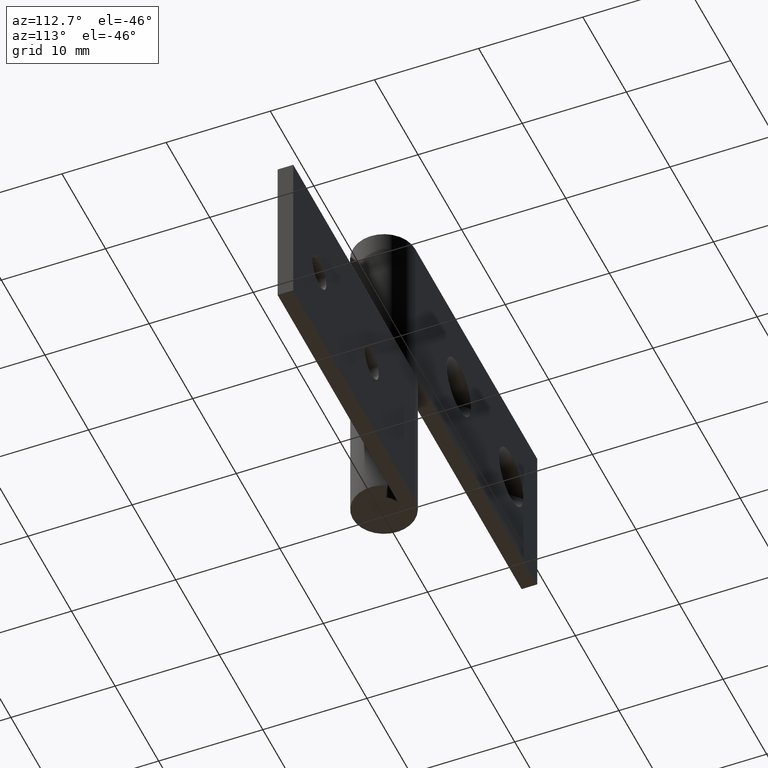
[diagram: clean part render]
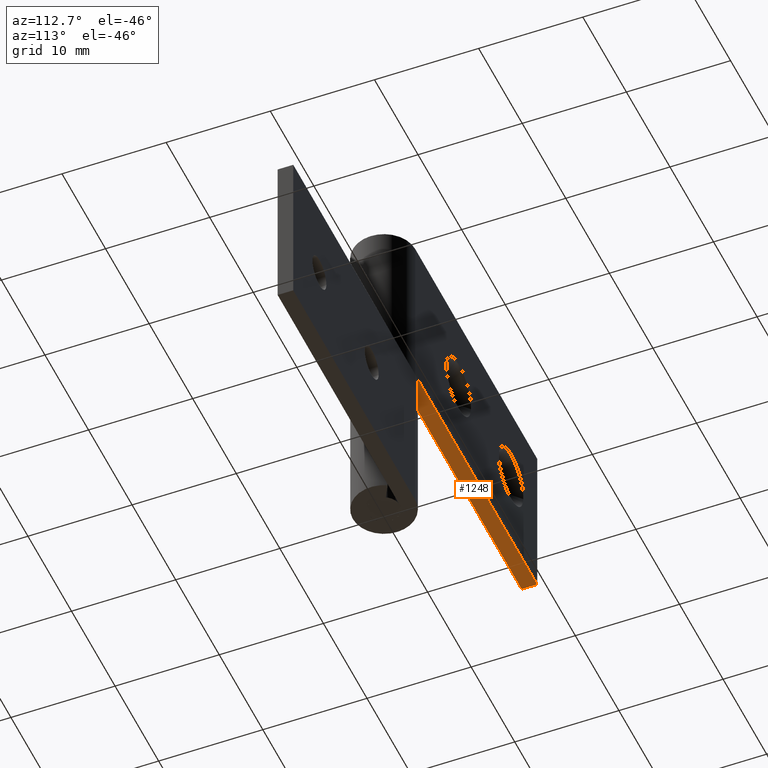
[diagram: same view with one face highlighted and labeled with its STEP entity id]
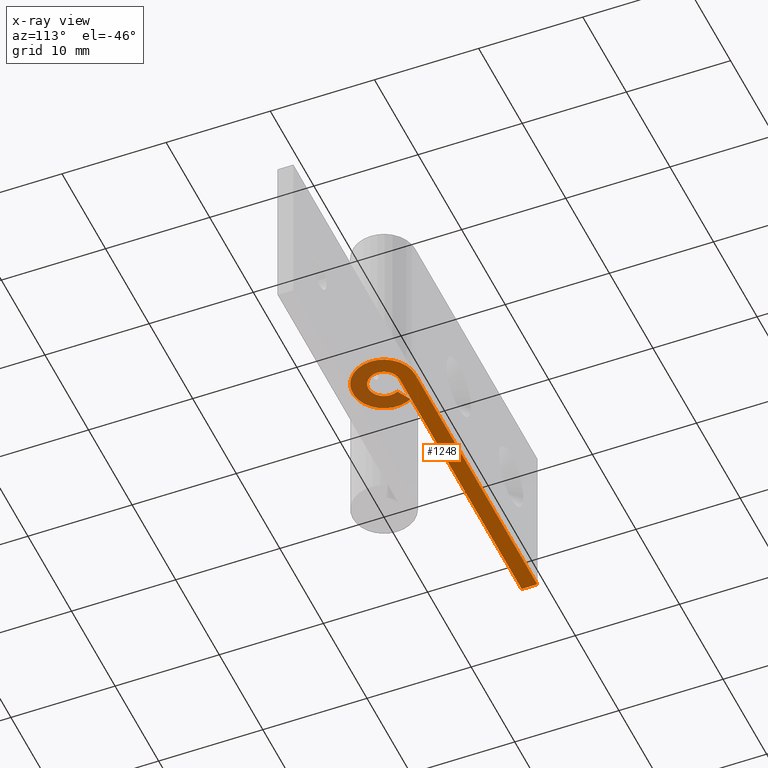
[diagram: x-ray of the same camera — body ghosted, the highlighted face saturated]
A machine part, auxiliary view. The second image highlights one B-rep face of the part: STEP entity #1248.
The next image is the same camera in x-ray: the body ghosted, the highlighted face saturated — about 23% of this face is hidden behind the body in this view.
In plain terms, the highlighted face is a freeform B-spline surface patch.
Its self-contained STEP definition (entity closure, byte-faithful):
#1171=CARTESIAN_POINT('',(-29.548447462887879,-3.299492257821385,16.0));
#1172=CARTESIAN_POINT('',(4.548398704217120,-3.299492257821385,16.0));
#1173=CARTESIAN_POINT('',(-29.548447462887879,3.299690266788844,16.0));
#1174=CARTESIAN_POINT('',(4.548398704217120,3.299690266788844,16.0));
#1175=B_SPLINE_SURFACE_WITH_KNOTS('',1,1,((#1171,#1173),(#1172,#1174)),.UNSPECIFIED.,.F.,.F.,.U.,(2,2),(2,2),(0.0,34.096846167104999),(0.0,6.599182524610230),.UNSPECIFIED.);
#1176=CARTESIAN_POINT('',(-28.0,1.500000000000000,16.0));
#1177=VERTEX_POINT('',#1176);
#1178=CARTESIAN_POINT('',(-2.755364E-016,1.500000000000000,16.0));
#1179=VERTEX_POINT('',#1178);
#1180=CARTESIAN_POINT('',(-28.0,1.500000000000000,16.0));
#1181=CARTESIAN_POINT('',(-2.755364E-016,1.500000000000000,16.0));
#1182=QUASI_UNIFORM_CURVE('',1,(#1180,#1181),.UNSPECIFIED.,.F.,.U.);
#1183=EDGE_CURVE('',#1177,#1179,#1182,.T.);
#1184=ORIENTED_EDGE('',*,*,#1183,.F.);
#1185=CARTESIAN_POINT('',(-28.0,3.0,16.0));
#1186=VERTEX_POINT('',#1185);
#1187=CARTESIAN_POINT('',(-28.0,3.0,16.0));
#1188=CARTESIAN_POINT('',(-28.0,1.500000000000000,16.0));
#1189=QUASI_UNIFORM_CURVE('',1,(#1187,#1188),.UNSPECIFIED.,.F.,.U.);
#1190=EDGE_CURVE('',#1186,#1177,#1189,.T.);
#1191=ORIENTED_EDGE('',*,*,#1190,.F.);
#1192=CARTESIAN_POINT('',(-1.148577E-015,3.0,16.0));
#1193=VERTEX_POINT('',#1192);
#1194=CARTESIAN_POINT('',(-1.148577E-015,3.0,16.0));
#1195=CARTESIAN_POINT('',(-28.0,3.0,16.0));
#1196=QUASI_UNIFORM_CURVE('',1,(#1194,#1195),.UNSPECIFIED.,.F.,.U.);
#1197=EDGE_CURVE('',#1193,#1186,#1196,.T.);
#1198=ORIENTED_EDGE('',*,*,#1197,.F.);
#1199=CARTESIAN_POINT('',(-2.626309197333780,1.450000000000000,16.0));
#1200=VERTEX_POINT('',#1199);
#1201=CARTESIAN_POINT('',(0.0,3.0,16.0));
#1202=CARTESIAN_POINT('',(2.290598042424808,3.0,16.000000000000004));
#1203=CARTESIAN_POINT('',(2.894028888043301,0.790314364775724,16.0));
#1204=CARTESIAN_POINT('',(3.497459733661794,-1.419371270448550,16.000000000000004));
#1205=CARTESIAN_POINT('',(1.524795068197693,-2.583602136552761,16.0));
#1206=CARTESIAN_POINT('',(-0.447869597266408,-3.747833002656974,16.000000000000004));
#1207=CARTESIAN_POINT('',(-2.090650590886088,-2.151552952364328,16.0));
#1208=CARTESIAN_POINT('',(-3.733431584505768,-0.555272902071681,16.000000000000004));
#1209=CARTESIAN_POINT('',(-2.626309197333781,1.449999999999996,16.0));
#1217=(BOUNDED_CURVE()B_SPLINE_CURVE(2,(#1201,#1202,#1203,#1204,#1205,#1206,#1207,#1208,#1209),.UNSPECIFIED.,.F.,.U.)B_SPLINE_CURVE_WITH_KNOTS((3,2,2,2,3),(0.0,0.250000000000000,0.500000000000000,0.750000000000000,1.0),.UNSPECIFIED.)CURVE()GEOMETRIC_REPRESENTATION_ITEM()RATIONAL_B_SPLINE_CURVE((1.0,0.794807562115481,1.0,0.794807562115481,1.0,0.794807562115481,1.0,0.794807562115481,1.0))REPRESENTATION_ITEM(''));
#1218=EDGE_CURVE('',#1193,#1200,#1217,.T.);
#1219=ORIENTED_EDGE('',*,*,#1218,.T.);
#1220=CARTESIAN_POINT('',(-1.313154598666890,0.725000000000000,16.0));
#1221=VERTEX_POINT('',#1220);
#1222=CARTESIAN_POINT('',(-1.313154598666890,0.725000000000000,16.0));
#1223=CARTESIAN_POINT('',(-2.626309197333780,1.450000000000000,16.0));
#1224=QUASI_UNIFORM_CURVE('',1,(#1222,#1223),.UNSPECIFIED.,.F.,.U.);
#1225=EDGE_CURVE('',#1221,#1200,#1224,.T.);
#1226=ORIENTED_EDGE('',*,*,#1225,.F.);
#1227=CARTESIAN_POINT('',(0.0,1.500000000000000,16.0));
#1228=CARTESIAN_POINT('',(1.145299021212404,1.500000000000001,16.000000000000004));
#1229=CARTESIAN_POINT('',(1.447014444021651,0.395157182387862,16.0));
#1230=CARTESIAN_POINT('',(1.748729866830897,-0.709685635224275,16.000000000000004));
#1231=CARTESIAN_POINT('',(0.762397534098847,-1.291801068276381,16.0));
#1232=CARTESIAN_POINT('',(-0.223934798633204,-1.873916501328487,16.000000000000004));
#1233=CARTESIAN_POINT('',(-1.045325295443044,-1.075776476182164,16.0));
#1234=CARTESIAN_POINT('',(-1.866715792252885,-0.277636451035840,16.000000000000004));
#1235=CARTESIAN_POINT('',(-1.313154598666891,0.724999999999998,16.0));
#1243=(BOUNDED_CURVE()B_SPLINE_CURVE(2,(#1227,#1228,#1229,#1230,#1231,#1232,#1233,#1234,#1235),.UNSPECIFIED.,.F.,.U.)B_SPLINE_CURVE_WITH_KNOTS((3,2,2,2,3),(0.0,0.250000000000000,0.500000000000000,0.750000000000000,1.0),.UNSPECIFIED.)CURVE()GEOMETRIC_REPRESENTATION_ITEM()RATIONAL_B_SPLINE_CURVE((1.0,0.794807562115481,1.0,0.794807562115481,1.0,0.794807562115481,1.0,0.794807562115481,1.0))REPRESENTATION_ITEM(''));
#1244=EDGE_CURVE('',#1179,#1221,#1243,.T.);
#1245=ORIENTED_EDGE('',*,*,#1244,.F.);
#1246=EDGE_LOOP('',(#1184,#1191,#1198,#1219,#1226,#1245));
#1247=FACE_OUTER_BOUND('',#1246,.T.);
#1248=ADVANCED_FACE('',(#1247),#1175,.F.);